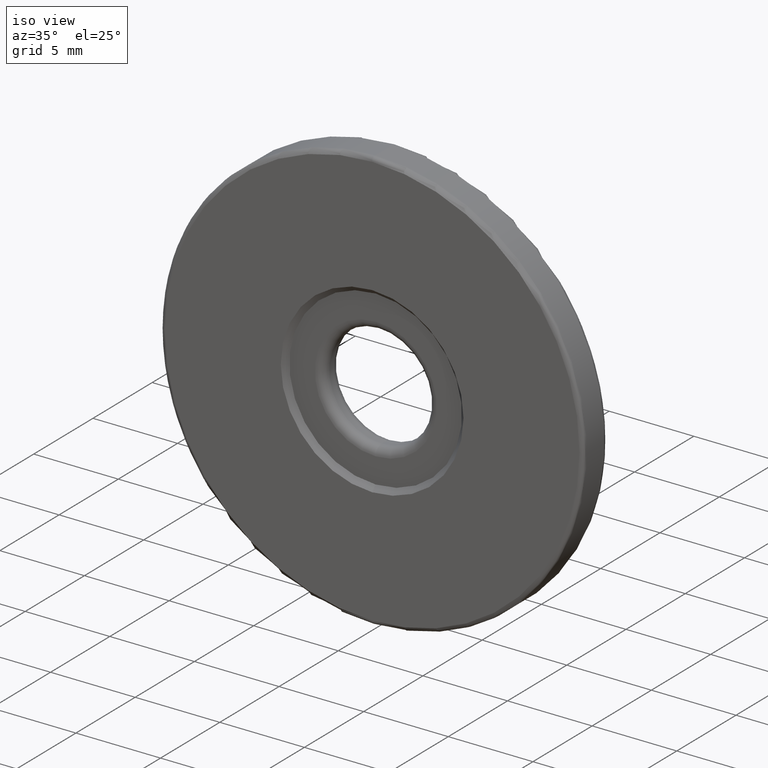
[diagram: clean part render]
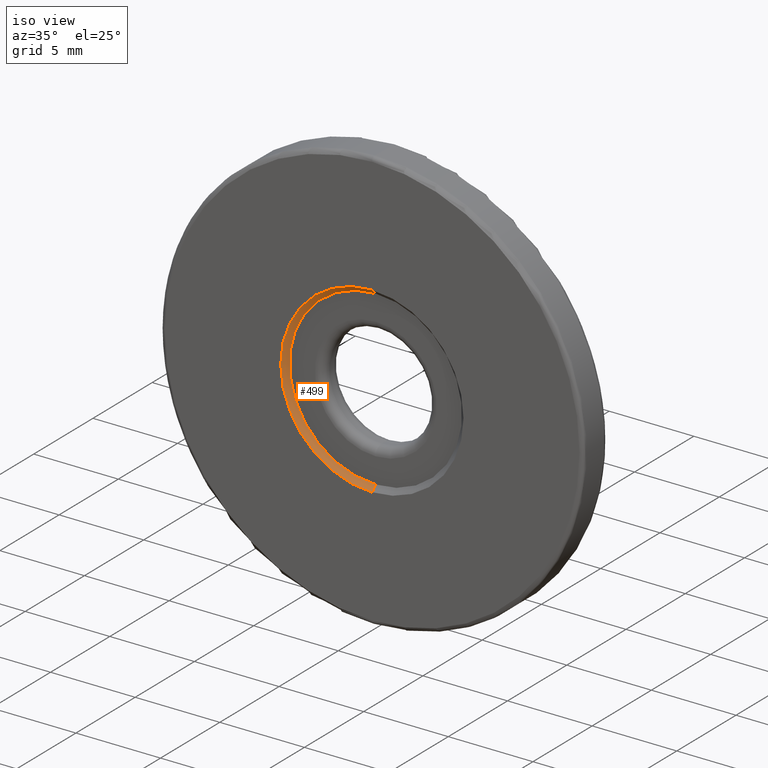
[diagram: same view with one face highlighted and labeled with its STEP entity id]
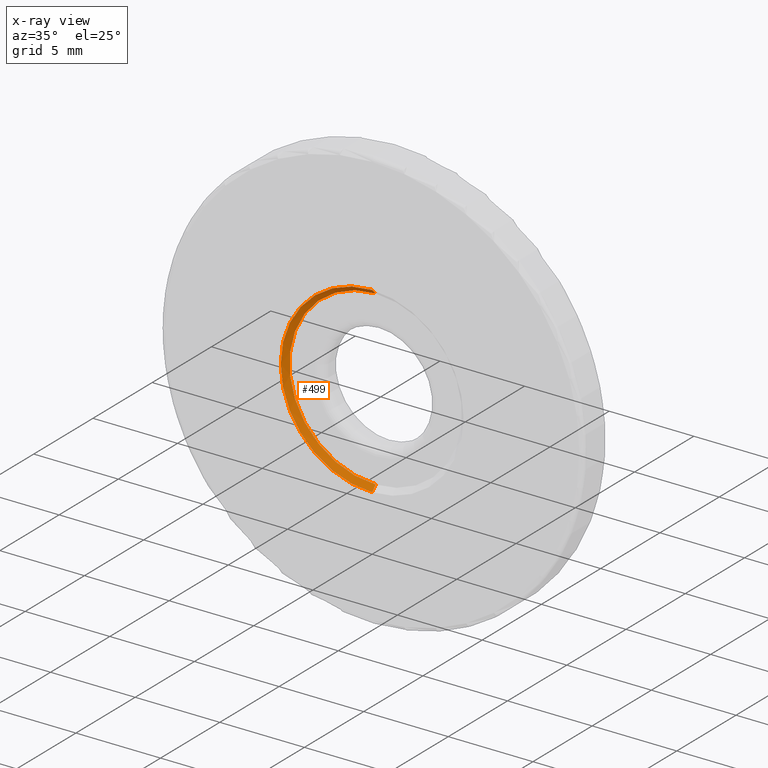
[diagram: x-ray of the same camera — body ghosted, the highlighted face saturated]
A machine part, iso view. The second image highlights one B-rep face of the part: STEP entity #499.
The next image is the same camera in x-ray: the body ghosted, the highlighted face saturated — about 0% of this face is hidden behind the body in this view.
In plain terms, the highlighted conical surface has half-angle 45 deg.
Its self-contained STEP definition (entity closure, byte-faithful):
#21 = DIRECTION ( 'NONE',  ( -0.0000000000000000000, 1.000000000000000000, -0.0000000000000000000 ) ) ;
#46 = LINE ( 'NONE', #573, #179 ) ;
#67 = DIRECTION ( 'NONE',  ( 0.0000000000000000000, 1.000000000000000000, 0.0000000000000000000 ) ) ;
#70 = DIRECTION ( 'NONE',  ( 0.0000000000000000000, 0.0000000000000000000, 1.000000000000000000 ) ) ;
#96 = VERTEX_POINT ( 'NONE', #577 ) ;
#102 = ORIENTED_EDGE ( 'NONE', *, *, #588, .F. ) ;
#116 = DIRECTION ( 'NONE',  ( 0.0000000000000000000, 0.0000000000000000000, -1.000000000000000000 ) ) ;
#123 = CARTESIAN_POINT ( 'NONE',  ( -4.682026255059963837, -2.594975976998274980, 30.40000000000000568 ) ) ;
#135 = EDGE_LOOP ( 'NONE', ( #364, #240, #562, #102 ) ) ;
#147 = AXIS2_PLACEMENT_3D ( 'NONE', #605, #21, #70 ) ;
#175 = CIRCLE ( 'NONE', #147, 5.100000000000000533 ) ;
#178 = DIRECTION ( 'NONE',  ( 0.0000000000000000000, 0.0000000000000000000, 1.000000000000000000 ) ) ;
#179 = VECTOR ( 'NONE', #287, 999.9999999999998863 ) ;
#185 = EDGE_CURVE ( 'NONE', #576, #440, #601, .T. ) ;
#239 = EDGE_CURVE ( 'NONE', #522, #576, #175, .T. ) ;
#240 = ORIENTED_EDGE ( 'NONE', *, *, #185, .T. ) ;
#259 = DIRECTION ( 'NONE',  ( 8.659560562354945184E-17, -0.7071067811865464625, 0.7071067811865486830 ) ) ;
#277 = FACE_OUTER_BOUND ( 'NONE', #135, .T. ) ;
#287 = DIRECTION ( 'NONE',  ( 0.0000000000000000000, -0.7071067811865464625, -0.7071067811865486830 ) ) ;
#323 = CARTESIAN_POINT ( 'NONE',  ( -4.682026255059963837, -2.594975976998274980, 30.40000000000000568 ) ) ;
#364 = ORIENTED_EDGE ( 'NONE', *, *, #239, .T. ) ;
#398 = AXIS2_PLACEMENT_3D ( 'NONE', #450, #416, #116 ) ;
#416 = DIRECTION ( 'NONE',  ( -0.0000000000000000000, -1.000000000000000000, -0.0000000000000000000 ) ) ;
#422 = AXIS2_PLACEMENT_3D ( 'NONE', #496, #67, #178 ) ;
#429 = CONICAL_SURFACE ( 'NONE', #398, 5.400000000000005684, 0.7853981633974497223 ) ;
#440 = VERTEX_POINT ( 'NONE', #323 ) ;
#450 = CARTESIAN_POINT ( 'NONE',  ( -4.682026255059964726, -2.594975976998274980, 25.00000000000000000 ) ) ;
#496 = CARTESIAN_POINT ( 'NONE',  ( -4.682026255059964726, -2.594975976998274980, 25.00000000000000000 ) ) ;
#499 = ADVANCED_FACE ( 'NONE', ( #277 ), #429, .F. ) ;
#522 = VERTEX_POINT ( 'NONE', #564 ) ;
#526 = CARTESIAN_POINT ( 'NONE',  ( -4.682026255059963837, -2.294975976998275158, 30.10000000000000142 ) ) ;
#538 = CIRCLE ( 'NONE', #422, 5.400000000000005684 ) ;
#562 = ORIENTED_EDGE ( 'NONE', *, *, #600, .F. ) ;
#564 = CARTESIAN_POINT ( 'NONE',  ( -4.682026255059964726, -2.294975976998275158, 19.90000000000000213 ) ) ;
#567 = VECTOR ( 'NONE', #259, 999.9999999999998863 ) ;
#573 = CARTESIAN_POINT ( 'NONE',  ( -4.682026255059964726, -2.594975976998274980, 19.59999999999999432 ) ) ;
#576 = VERTEX_POINT ( 'NONE', #526 ) ;
#577 = CARTESIAN_POINT ( 'NONE',  ( -4.682026255059964726, -2.594975976998274980, 19.59999999999999432 ) ) ;
#588 = EDGE_CURVE ( 'NONE', #522, #96, #46, .T. ) ;
#600 = EDGE_CURVE ( 'NONE', #96, #440, #538, .T. ) ;
#601 = LINE ( 'NONE', #123, #567 ) ;
#605 = CARTESIAN_POINT ( 'NONE',  ( -4.682026255059964726, -2.294975976998275158, 25.00000000000000000 ) ) ;